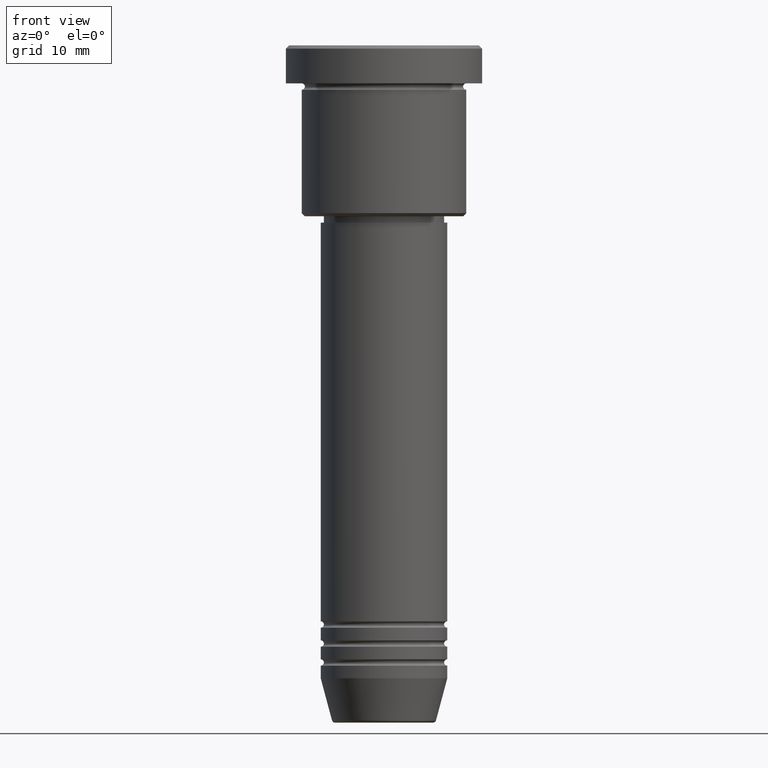
[diagram: clean part render]
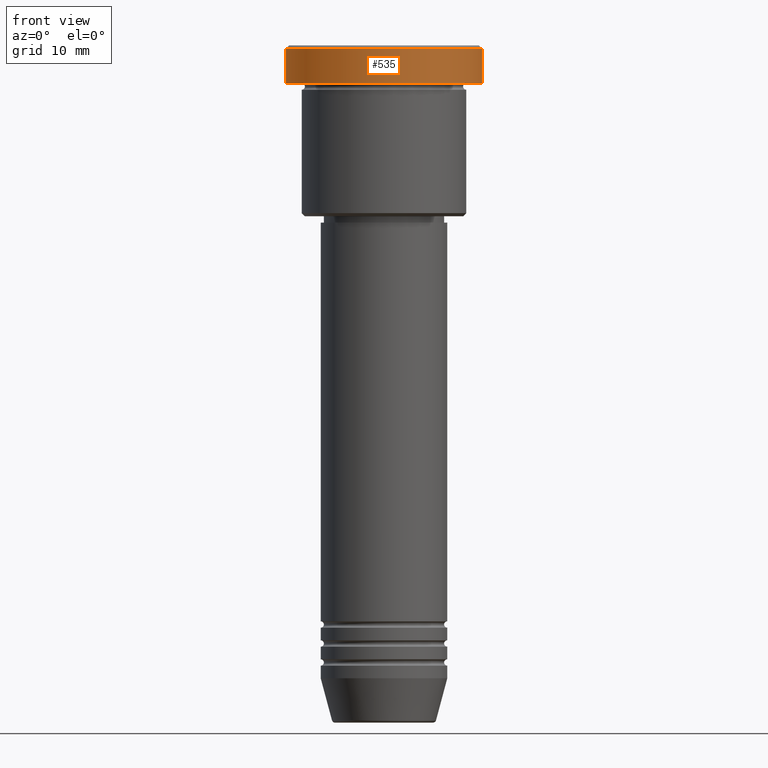
[diagram: same view with one face highlighted and labeled with its STEP entity id]
A machine part, front view. The second image highlights one B-rep face of the part: STEP entity #535.
In plain terms, the highlighted cylindrical surface (partial cylindrical patch) has radius 15.5 mm, axis along (-0, -0, 1).
Its self-contained STEP definition (entity closure, byte-faithful):
#25 = DIRECTION ( 'NONE',  ( 1.000000000000000000, 0.000000000000000000, 0.000000000000000000 ) ) ;
#37 = CARTESIAN_POINT ( 'NONE',  ( 0.000000000000000000, 0.000000000000000000, -0.4999999999999709677 ) ) ;
#62 = CARTESIAN_POINT ( 'NONE',  ( -15.50000000000000000, 1.898202538678397557E-15, 0.000000000000000000 ) ) ;
#63 = DIRECTION ( 'NONE',  ( -0.000000000000000000, -0.000000000000000000, 1.000000000000000000 ) ) ;
#88 = AXIS2_PLACEMENT_3D ( 'NONE', #37, #812, #738 ) ;
#113 = VERTEX_POINT ( 'NONE', #744 ) ;
#130 = ORIENTED_EDGE ( 'NONE', *, *, #584, .T. ) ;
#199 = VECTOR ( 'NONE', #63, 1000.000000000000000 ) ;
#206 = FACE_OUTER_BOUND ( 'NONE', #520, .T. ) ;
#331 = CARTESIAN_POINT ( 'NONE',  ( -15.50000000000000000, 1.898202538678397557E-15, -5.999999999999995559 ) ) ;
#362 = CIRCLE ( 'NONE', #678, 15.50000000000000000 ) ;
#377 = VERTEX_POINT ( 'NONE', #548 ) ;
#412 = CARTESIAN_POINT ( 'NONE',  ( 15.50000000000000000, 0.000000000000000000, 0.000000000000000000 ) ) ;
#414 = VERTEX_POINT ( 'NONE', #989 ) ;
#453 = DIRECTION ( 'NONE',  ( -0.000000000000000000, -0.000000000000000000, 1.000000000000000000 ) ) ;
#479 = CARTESIAN_POINT ( 'NONE',  ( 0.000000000000000000, 0.000000000000000000, 0.000000000000000000 ) ) ;
#512 = LINE ( 'NONE', #412, #199 ) ;
#520 = EDGE_LOOP ( 'NONE', ( #991, #1121, #966, #130 ) ) ;
#527 = AXIS2_PLACEMENT_3D ( 'NONE', #479, #453, #1126 ) ;
#535 = ADVANCED_FACE ( 'NONE', ( #206 ), #725, .T. ) ;
#543 = DIRECTION ( 'NONE',  ( -0.000000000000000000, -0.000000000000000000, 1.000000000000000000 ) ) ;
#548 = CARTESIAN_POINT ( 'NONE',  ( 15.50000000000000000, 0.000000000000000000, -5.999999999999995559 ) ) ;
#584 = EDGE_CURVE ( 'NONE', #113, #414, #999, .T. ) ;
#675 = VERTEX_POINT ( 'NONE', #331 ) ;
#678 = AXIS2_PLACEMENT_3D ( 'NONE', #829, #543, #25 ) ;
#725 = CYLINDRICAL_SURFACE ( 'NONE', #527, 15.50000000000000000 ) ;
#738 = DIRECTION ( 'NONE',  ( 1.000000000000000000, 0.000000000000000000, 0.000000000000000000 ) ) ;
#744 = CARTESIAN_POINT ( 'NONE',  ( 15.50000000000000000, 0.000000000000000000, -0.4999999999999709677 ) ) ;
#805 = EDGE_CURVE ( 'NONE', #675, #377, #362, .T. ) ;
#812 = DIRECTION ( 'NONE',  ( 0.000000000000000000, 0.000000000000000000, -1.000000000000000000 ) ) ;
#825 = EDGE_CURVE ( 'NONE', #377, #113, #512, .T. ) ;
#829 = CARTESIAN_POINT ( 'NONE',  ( 0.000000000000000000, 0.000000000000000000, -5.999999999999995559 ) ) ;
#873 = LINE ( 'NONE', #62, #880 ) ;
#880 = VECTOR ( 'NONE', #1040, 1000.000000000000000 ) ;
#966 = ORIENTED_EDGE ( 'NONE', *, *, #825, .T. ) ;
#989 = CARTESIAN_POINT ( 'NONE',  ( -15.50000000000000000, 1.898202538678397557E-15, -0.4999999999999709677 ) ) ;
#991 = ORIENTED_EDGE ( 'NONE', *, *, #1084, .F. ) ;
#999 = CIRCLE ( 'NONE', #88, 15.50000000000000000 ) ;
#1040 = DIRECTION ( 'NONE',  ( -0.000000000000000000, -0.000000000000000000, 1.000000000000000000 ) ) ;
#1084 = EDGE_CURVE ( 'NONE', #675, #414, #873, .T. ) ;
#1121 = ORIENTED_EDGE ( 'NONE', *, *, #805, .T. ) ;
#1126 = DIRECTION ( 'NONE',  ( 1.000000000000000000, 0.000000000000000000, 0.000000000000000000 ) ) ;